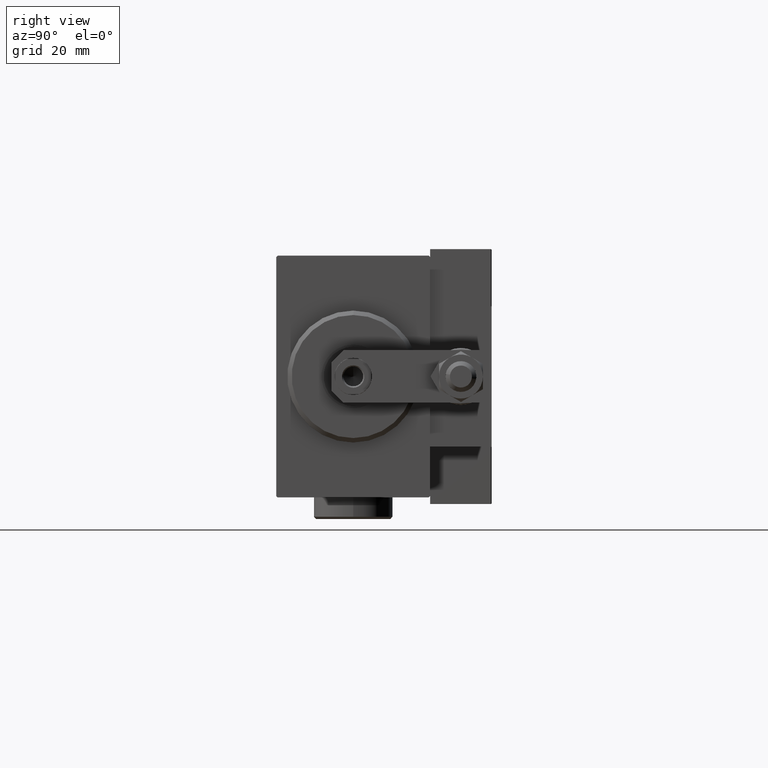
[diagram: clean part render]
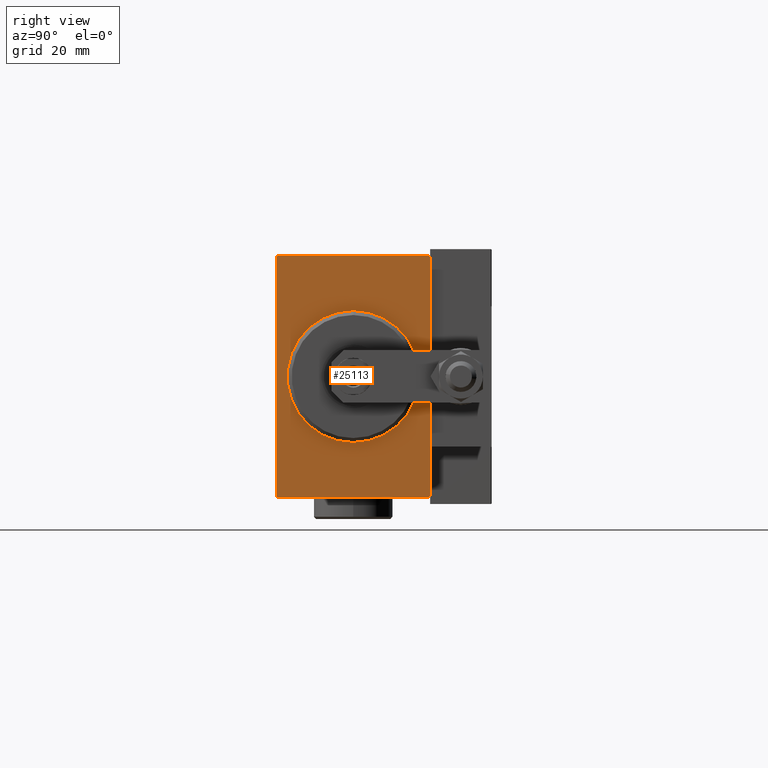
[diagram: same view with one face highlighted and labeled with its STEP entity id]
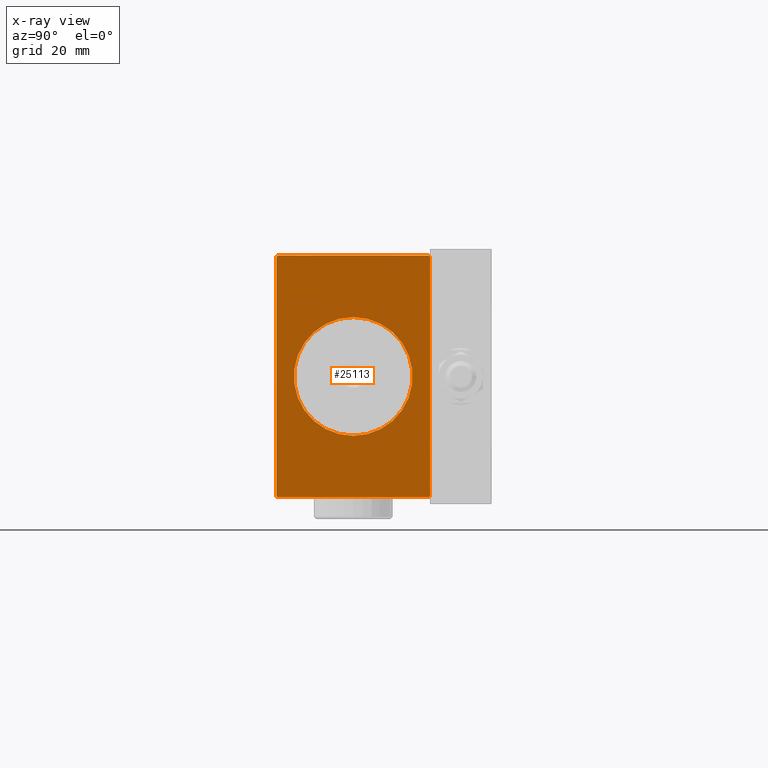
[diagram: x-ray of the same camera — body ghosted, the highlighted face saturated]
A machine part, right view. The second image highlights one B-rep face of the part: STEP entity #25113.
The next image is the same camera in x-ray: the body ghosted, the highlighted face saturated — about 0% of this face is hidden behind the body in this view.
In plain terms, the highlighted planar face has unit normal (-1, 0, 0).
Its self-contained STEP definition (entity closure, byte-faithful):
#210 = CARTESIAN_POINT ( 'NONE',  ( 0.000000000000000000, 17.20000000000001705, 27.50000000000000000 ) ) ;
#242 = EDGE_CURVE ( 'NONE', #11208, #15259, #50573, .T. ) ;
#276 = EDGE_CURVE ( 'NONE', #22394, #38665, #46669, .T. ) ;
#348 = VECTOR ( 'NONE', #20265, 1000.000000000000000 ) ;
#483 = DIRECTION ( 'NONE',  ( 0.000000000000000000, -1.261617073437677752E-16, 1.000000000000000000 ) ) ;
#677 = CARTESIAN_POINT ( 'NONE',  ( 0.000000000000000000, -17.20000000000001705, -27.50000000000000000 ) ) ;
#2168 = VERTEX_POINT ( 'NONE', #677 ) ;
#2912 = EDGE_CURVE ( 'NONE', #2168, #12586, #34263, .T. ) ;
#3963 = EDGE_CURVE ( 'NONE', #11208, #38665, #4654, .T. ) ;
#4159 = EDGE_CURVE ( 'NONE', #8819, #12586, #39311, .T. ) ;
#4194 = CIRCLE ( 'NONE', #36551, 13.50000000000001243 ) ;
#4228 = DIRECTION ( 'NONE',  ( -0.000000000000000000, 0.7071067811865474617, 0.7071067811865474617 ) ) ;
#4465 = CARTESIAN_POINT ( 'NONE',  ( 0.000000000000000000, -17.49999999999999645, 27.19999999999998508 ) ) ;
#4654 = LINE ( 'NONE', #24424, #348 ) ;
#5832 = DIRECTION ( 'NONE',  ( 0.000000000000000000, 0.000000000000000000, -1.000000000000000000 ) ) ;
#6488 = ORIENTED_EDGE ( 'NONE', *, *, #2912, .F. ) ;
#6941 = CARTESIAN_POINT ( 'NONE',  ( 0.000000000000000000, 17.50000000000000355, -27.20000000000000995 ) ) ;
#6982 = VECTOR ( 'NONE', #25629, 1000.000000000000114 ) ;
#7487 = ORIENTED_EDGE ( 'NONE', *, *, #29561, .T. ) ;
#8819 = VERTEX_POINT ( 'NONE', #6941 ) ;
#9485 = CARTESIAN_POINT ( 'NONE',  ( 0.000000000000000000, 17.20000000000000995, -27.50000000000000355 ) ) ;
#9822 = CARTESIAN_POINT ( 'NONE',  ( 0.000000000000000000, -17.19999999999998863, 27.49999999999999289 ) ) ;
#11208 = VERTEX_POINT ( 'NONE', #210 ) ;
#11967 = DIRECTION ( 'NONE',  ( 0.000000000000000000, 0.000000000000000000, -1.000000000000000000 ) ) ;
#12557 = CARTESIAN_POINT ( 'NONE',  ( 0.000000000000000000, 0.000000000000000000, 0.000000000000000000 ) ) ;
#12586 = VERTEX_POINT ( 'NONE', #9485 ) ;
#12643 = ORIENTED_EDGE ( 'NONE', *, *, #4159, .T. ) ;
#14725 = VERTEX_POINT ( 'NONE', #31985 ) ;
#14812 = CIRCLE ( 'NONE', #16471, 13.50000000000001243 ) ;
#15204 = EDGE_CURVE ( 'NONE', #14725, #16751, #14812, .T. ) ;
#15259 = VERTEX_POINT ( 'NONE', #46677 ) ;
#15421 = CARTESIAN_POINT ( 'NONE',  ( 0.000000000000000000, 17.20000000000001705, 27.50000000000000000 ) ) ;
#15709 = DIRECTION ( 'NONE',  ( 0.000000000000000000, 0.000000000000000000, -1.000000000000000000 ) ) ;
#15790 = EDGE_CURVE ( 'NONE', #8819, #15259, #36101, .T. ) ;
#16471 = AXIS2_PLACEMENT_3D ( 'NONE', #26127, #42003, #5832 ) ;
#16751 = VERTEX_POINT ( 'NONE', #29128 ) ;
#19429 = ORIENTED_EDGE ( 'NONE', *, *, #15204, .T. ) ;
#20127 = DIRECTION ( 'NONE',  ( 1.000000000000000000, 0.000000000000000000, 0.000000000000000000 ) ) ;
#20150 = EDGE_CURVE ( 'NONE', #16751, #14725, #4194, .T. ) ;
#20265 = DIRECTION ( 'NONE',  ( 0.000000000000000000, -1.000000000000000000, -1.982541115402065356E-16 ) ) ;
#20983 = ORIENTED_EDGE ( 'NONE', *, *, #48369, .F. ) ;
#22382 = CARTESIAN_POINT ( 'NONE',  ( 0.000000000000000000, -17.49999999999999645, 27.49999999999999289 ) ) ;
#22394 = VERTEX_POINT ( 'NONE', #4465 ) ;
#22901 = LINE ( 'NONE', #22382, #32653 ) ;
#23380 = VERTEX_POINT ( 'NONE', #28723 ) ;
#23466 = VECTOR ( 'NONE', #27645, 1000.000000000000000 ) ;
#24345 = VECTOR ( 'NONE', #25095, 1000.000000000000000 ) ;
#24424 = CARTESIAN_POINT ( 'NONE',  ( 0.000000000000000000, 17.49999999999999645, 27.50000000000000000 ) ) ;
#24549 = FACE_BOUND ( 'NONE', #32579, .T. ) ;
#25095 = DIRECTION ( 'NONE',  ( -0.000000000000000000, -0.7071067811865311414, 0.7071067811865638930 ) ) ;
#25113 = ADVANCED_FACE ( 'NONE', ( #24549, #39392 ), #39654, .F. ) ;
#25629 = DIRECTION ( 'NONE',  ( 0.000000000000000000, -0.7071067811865474617, -0.7071067811865474617 ) ) ;
#26127 = CARTESIAN_POINT ( 'NONE',  ( 0.000000000000000000, 0.000000000000000000, 0.000000000000000000 ) ) ;
#26698 = AXIS2_PLACEMENT_3D ( 'NONE', #12557, #20127, #15709 ) ;
#27645 = DIRECTION ( 'NONE',  ( -0.000000000000000000, 0.7071067811865516806, -0.7071067811865434649 ) ) ;
#27910 = CARTESIAN_POINT ( 'NONE',  ( 0.000000000000000000, -17.49999999999999645, 27.19999999999998508 ) ) ;
#28049 = CARTESIAN_POINT ( 'NONE',  ( 0.000000000000000000, 17.50000000000000355, -27.50000000000000355 ) ) ;
#28101 = CARTESIAN_POINT ( 'NONE',  ( 0.000000000000000000, 0.000000000000000000, 0.000000000000000000 ) ) ;
#28486 = CARTESIAN_POINT ( 'NONE',  ( 0.000000000000000000, -17.20000000000001705, -27.50000000000000000 ) ) ;
#28596 = DIRECTION ( 'NONE',  ( 1.000000000000000000, 0.000000000000000000, 0.000000000000000000 ) ) ;
#28723 = CARTESIAN_POINT ( 'NONE',  ( 0.000000000000000000, -17.49999999999999645, -27.20000000000000639 ) ) ;
#29128 = CARTESIAN_POINT ( 'NONE',  ( 0.000000000000000000, 0.000000000000000000, 13.50000000000001243 ) ) ;
#29135 = ORIENTED_EDGE ( 'NONE', *, *, #242, .T. ) ;
#29561 = EDGE_CURVE ( 'NONE', #2168, #23380, #40463, .T. ) ;
#30184 = ORIENTED_EDGE ( 'NONE', *, *, #3963, .F. ) ;
#31985 = CARTESIAN_POINT ( 'NONE',  ( 0.000000000000000000, 1.653273178848928444E-15, -13.50000000000001243 ) ) ;
#32579 = EDGE_LOOP ( 'NONE', ( #37145, #19429 ) ) ;
#32653 = VECTOR ( 'NONE', #46075, 1000.000000000000000 ) ;
#34263 = LINE ( 'NONE', #34784, #45150 ) ;
#34646 = CARTESIAN_POINT ( 'NONE',  ( 0.000000000000000000, 17.50000000000000355, -27.20000000000000995 ) ) ;
#34784 = CARTESIAN_POINT ( 'NONE',  ( 0.000000000000000000, -17.49999999999999645, -27.50000000000000000 ) ) ;
#36101 = LINE ( 'NONE', #28049, #48915 ) ;
#36551 = AXIS2_PLACEMENT_3D ( 'NONE', #28101, #28596, #11967 ) ;
#37145 = ORIENTED_EDGE ( 'NONE', *, *, #20150, .T. ) ;
#38174 = DIRECTION ( 'NONE',  ( 0.000000000000000000, 1.000000000000000000, -9.912705577010325549E-17 ) ) ;
#38665 = VERTEX_POINT ( 'NONE', #9822 ) ;
#39311 = LINE ( 'NONE', #34646, #6982 ) ;
#39392 = FACE_OUTER_BOUND ( 'NONE', #42060, .T. ) ;
#39531 = ORIENTED_EDGE ( 'NONE', *, *, #276, .T. ) ;
#39654 = PLANE ( 'NONE',  #26698 ) ;
#40463 = LINE ( 'NONE', #28486, #24345 ) ;
#40914 = VECTOR ( 'NONE', #4228, 1000.000000000000114 ) ;
#42003 = DIRECTION ( 'NONE',  ( 1.000000000000000000, 0.000000000000000000, 0.000000000000000000 ) ) ;
#42060 = EDGE_LOOP ( 'NONE', ( #30184, #29135, #45275, #12643, #6488, #7487, #20983, #39531 ) ) ;
#45150 = VECTOR ( 'NONE', #38174, 1000.000000000000000 ) ;
#45275 = ORIENTED_EDGE ( 'NONE', *, *, #15790, .F. ) ;
#46075 = DIRECTION ( 'NONE',  ( 0.000000000000000000, 0.000000000000000000, -1.000000000000000000 ) ) ;
#46669 = LINE ( 'NONE', #27910, #40914 ) ;
#46677 = CARTESIAN_POINT ( 'NONE',  ( 0.000000000000000000, 17.49999999999999645, 27.20000000000002416 ) ) ;
#48369 = EDGE_CURVE ( 'NONE', #22394, #23380, #22901, .T. ) ;
#48915 = VECTOR ( 'NONE', #483, 1000.000000000000000 ) ;
#50573 = LINE ( 'NONE', #15421, #23466 ) ;